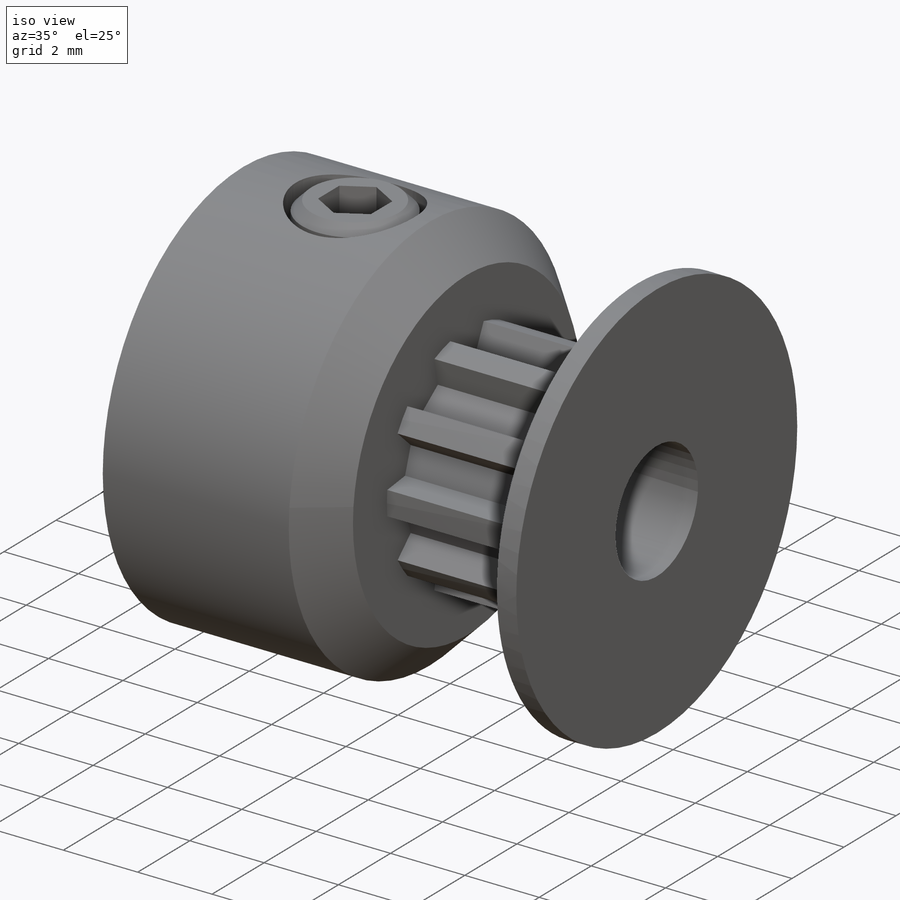
[diagram: iso view]
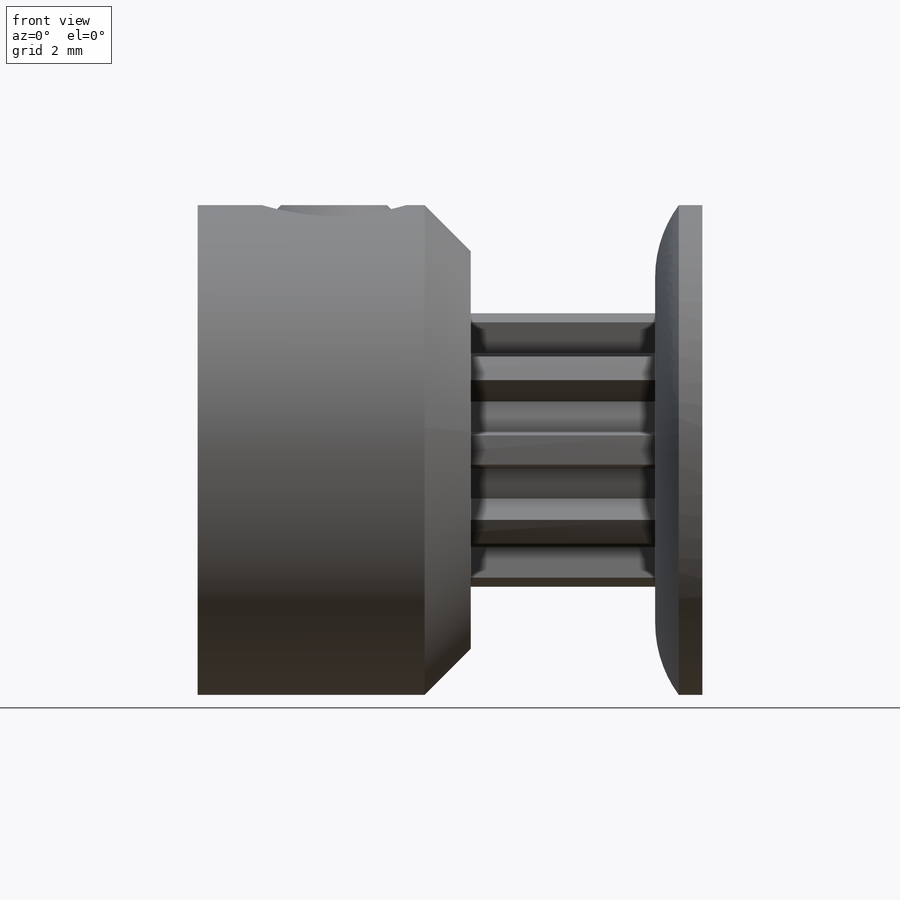
[diagram: front view]
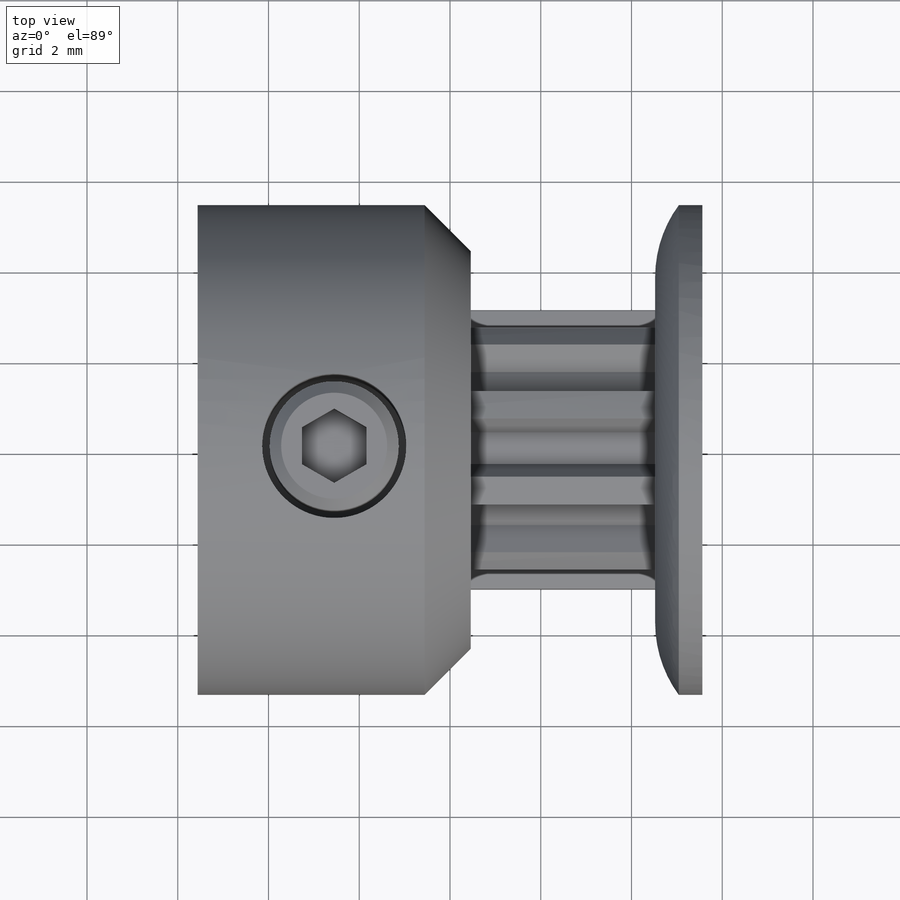
[diagram: top view]
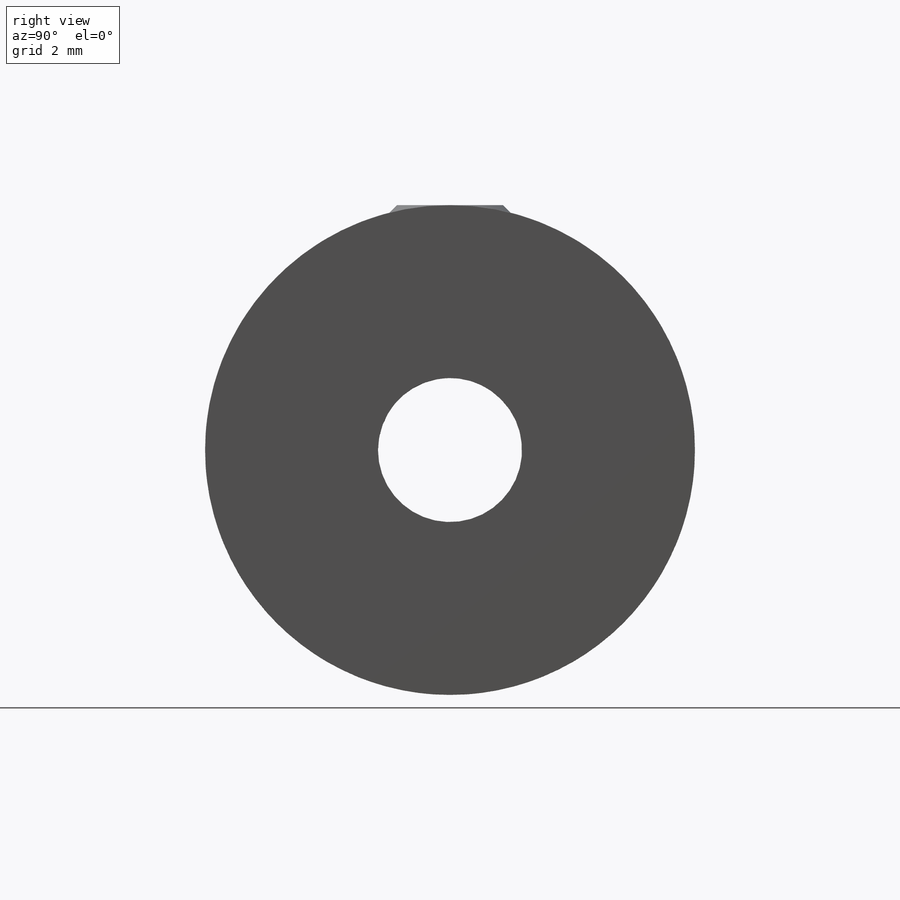
[diagram: right view]
SOLIDWORKS PART (.sldprt)
format: sldprt  version: not decoded by parser v0  size: 387,584 bytes
history: native  units: mm
features: sketch x8, cut_extrude x4, pattern_circular x3, revolve x2, material x1 (+16 scaffold rows collapsed; 1 parser-record rows omitted)
feature tree (35):
  scaffold x16  (default folders/planes/origin — collapsed)
  material  "Material <not specified>"
  sketch  "Sketch2"  dims[c1.PD=6.477mm c1.D6=0.254mm c1.D7=0.254mm c1.D2=~1.08158mm c2.D2=40.0deg c2.D4=1.143mm c2.D3=0.3175mm c3.D2=~0.617645mm c3.B=50.0deg c3.bt=1.143mm c3.D4=2.4765mm c3.angle distance=36.0deg c4.D4=~0.286598mm c5.D4=50.0deg c5.D5=1.143mm c5.hs=1.143mm c5.D2=0.508mm c5.bt=1.143mm c5.D1=~0.474906mm c6.D1=50.0deg c6.ht=0.508mm]
  sketch  "Sketch1"  dims[c1.Bore Size=3.175mm c1.Overall Width=11.1252mm c1.Inside Width=4.064mm c1.Outside Width=5.1054mm c1.Hub Dia=10.795mm c1.OD=10.795mm c1.D1=11.1252mm c2.D1=45.0deg c2.D2=0.635mm c2.D3=0.4064mm c3.D2=5.969mm c3.D3=8.382mm c3.D4=8.2042mm c4.D2=6.477mm c4.D3=1.143mm c4.D4=0.5715mm]
  revolve  "Revolve1"  Angle=360deg
  sketch  "Sketch4"
  cut_extrude  "Cut-Extrude2"  [1 undecoded]
  sketch  "Sketch3"  dims[D1=0.3048mm]
  cut_extrude  "Cut-Extrude1"  [1 undecoded]
  pattern_circular  "CirPattern1"  Count=10 Angle=360deg Teeth=10
  sketch  "Sketch5"
  sketch  "Sketch6"  dims[D1=3.175mm]
  cut_extrude  "Cut-Extrude3"  [1 undecoded]
  sketch  "Sketch7"  dims[D1=2.8448mm D4=0.254mm D5=0.254mm D2=0.381mm]
  revolve  "Revolve2"  Angle=360deg
  sketch  "Sketch8"  dims[D1=1.4224mm]
  cut_extrude  "Cut-Extrude4"  Depth=1.016mm
  parser-record x1  (decoder bookkeeping rows leaked as tree rows — omitted from the tree; the rows remain in map.json)
  pattern_circular  "CirPattern2"  Count=2 Angle=90deg
  pattern_circular  "CirPattern3"  Count=2 Angle=90deg
decode coverage: 12 of 17 modeling features carry decoded parameters
note: ~ marks probable driven/reference dimensions
note: 3 parameter values undecoded
summary: no parameter record found for 3 features
note: suppression state not decoded; provenance and decode notes live in map.json
